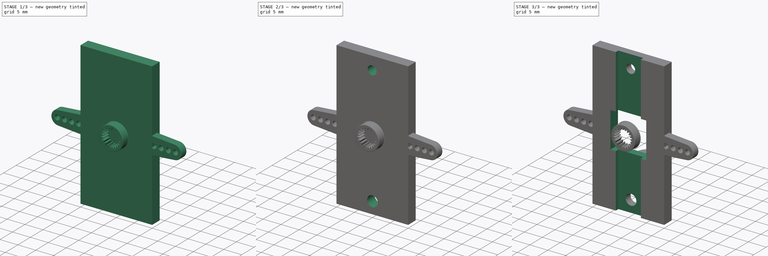
[diagram: build sequence overview — one tinted view per stage of 3, left to right]
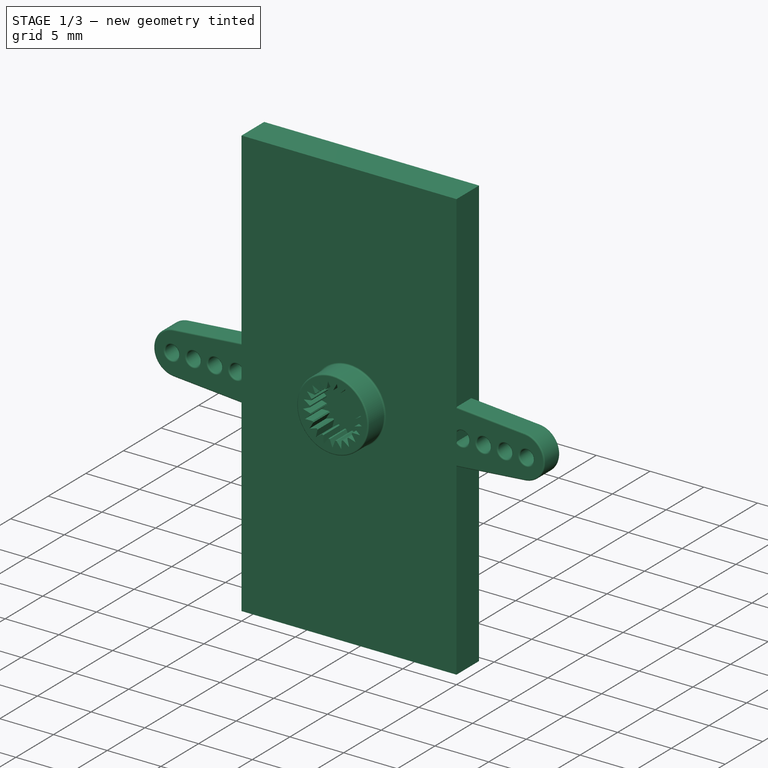
[diagram: stage 1 of 3 — iso view after this stage's code; geometry added in this stage tinted green]
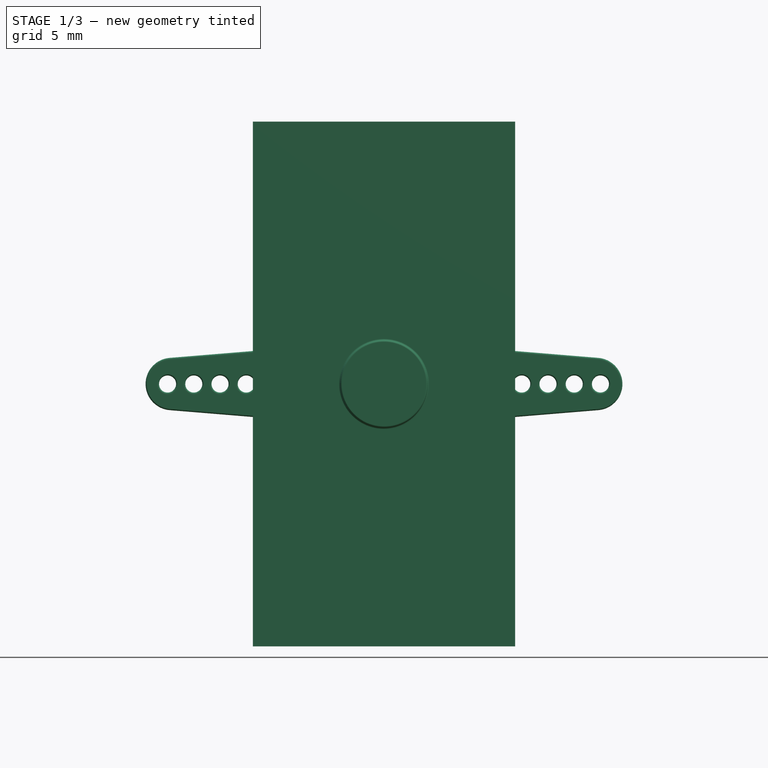
[diagram: stage 1 of 3 — front view after this stage's code; geometry added in this stage tinted green]
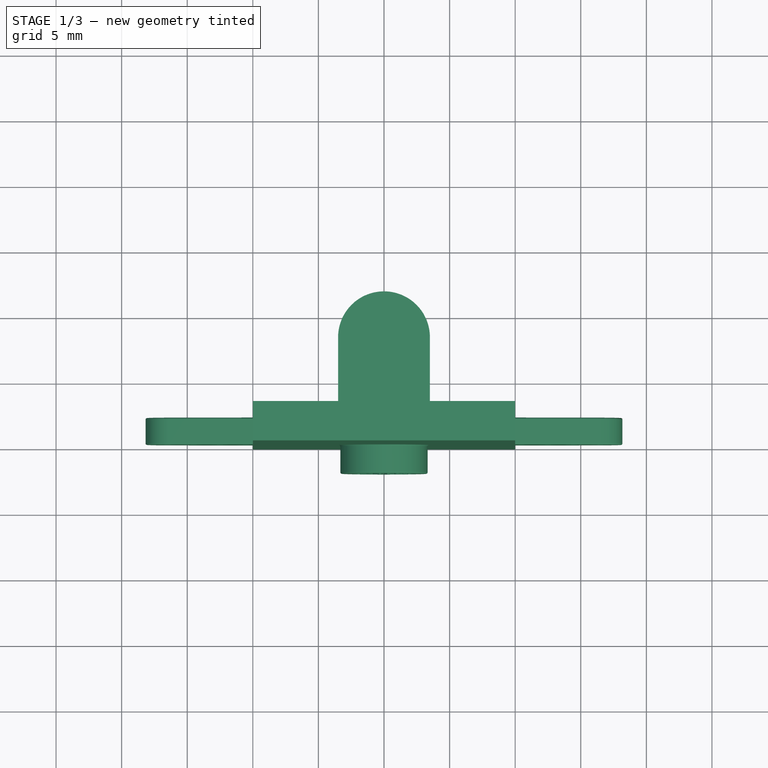
[diagram: stage 1 of 3 — top view after this stage's code; geometry added in this stage tinted green]
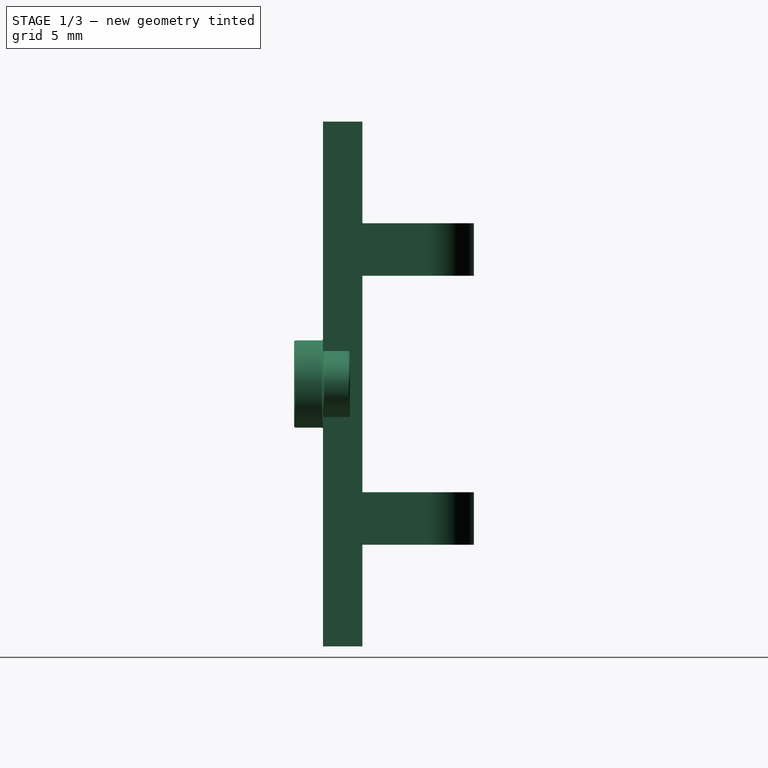
[diagram: stage 1 of 3 — right view after this stage's code; geometry added in this stage tinted green]
FCSTD DOCUMENT  (FreeCAD 1.2R20260429 (Git shallow))
Label: camera mount
License: All rights reserved
LicenseURL: https://en.wikipedia.org/wiki/All_rights_reserved
objects: Sketcher::SketchObject×7, PartDesign::Pocket×6, App::Point×1, Part::Feature×1, PartDesign::SubShapeBinder×1, PartDesign::FeatureBase×1, PartDesign::Pad×1, Part::DatumPlane×1, PartDesign::Body×1
note: 40 computed .brp shape members not serialized (recipe doc carries the construction recipe); baked Part::Feature solids carry a one-line shape summary decoded from their .brp

FEATURE [App::Point] Origin001  label="Origin-Point"
  Role = Origin
FEATURE [Sketcher::SketchObject] Sketch
  ArcFitTolerance = 1e-06
  AttachmentSupport = -> [Origin]
  ExternalTypes = [0]
  FullyConstrained = true
  MakeInternals = false
  MapMode = 2
  sketch-geometry (8):
    g0: LineSegment StartX=-10 StartY=0 StartZ=0 EndX=10 EndY=0 EndZ=0
    g1: LineSegment StartX=10 StartY=0 StartZ=0 EndX=10 EndY=3 EndZ=0
    g2: LineSegment StartX=10 StartY=3 StartZ=0 EndX=3.5 EndY=3 EndZ=0
    g3: LineSegment StartX=-10 StartY=3 StartZ=0 EndX=-10 EndY=0 EndZ=0
    g4: LineSegment StartX=3.5 StartY=3 StartZ=0 EndX=3.5 EndY=8 EndZ=0
    g5: LineSegment StartX=-3.5 StartY=8 StartZ=0 EndX=-3.5 EndY=3 EndZ=0
    g6: LineSegment StartX=-3.5 StartY=3 StartZ=0 EndX=-10 EndY=3 EndZ=0
    g7: ArcOfCircle CenterX=-2e-16 CenterY=7.99998 CenterZ=0 NormalX=0 NormalY=0 NormalZ=1 AngleXU=0 Radius=3.5 StartAngle=6.04025e-06 EndAngle=3.14159
  constraints (23):
    c: Coincident(g0,g1)
    c: Coincident(g1,g2)
    c: Coincident(g6,g3)
    c: Coincident(g3,g0)
    c: Vertical(g1)
    c: Vertical(g3)
    c: PointOnObject(g0,g-1)
    c: DistanceY(g1,g1) = 3
    c: Symmetric(g0,g0,g-2)
    c: DistanceX(g6,g2) = 20
    c: Vertical(g4)
    c: Vertical(g5)
    c: DistanceX(g5,g4) = 7
    c: Symmetric(g5,g4,g-2)
    c: DistanceY(g4,g4) = 5
    c: Horizontal(g2)
    c: Horizontal(g6)
    c: Coincident(g5,g6)
    c: Coincident(g2,g4)
    c: Equal(g5,g4)
    c: Diameter(g7) = 7
    c: Coincident(g7,g5)
    c: Coincident(g7,g4)
FEATURE [Sketcher::SketchObject] Sketch002
  ArcFitTolerance = 1e-06
  ExternalTypes = [0]
  FullyConstrained = true
  MakeInternals = false
  MapMode = 5
  Placement = pos=(0,0,0) rot=(1,0,0;3.14159rad)
  sketch-geometry (1):
    g0: Circle CenterX=0 CenterY=-8 CenterZ=0 NormalX=0 NormalY=0 NormalZ=1 AngleXU=0 Radius=1.5
  constraints (3):
    c: PointOnObject(g0,g-2)
    c: Diameter(g0) = 3
    c: DistanceY(g0,g-1) = 8
FEATURE [Part::Feature] Part__Feature  label="Four directed shoulder"
  Placement = pos=(-0.0982395,-1.3,-0.10173) rot=(0,1,0;4.69494rad)
  shape: bbox 16.55 x 4.55 x 36.67 mm, 232 faces (baked)
FEATURE [PartDesign::SubShapeBinder] Binder
  BindCopyOnChange = 0
  BindMode = 0
  ClaimChildren = false
  Context = -> Body [Binder.]
  Fuse = false
  MakeFace = true
  OffsetFill = false
  OffsetIntersection = false
  OffsetJoinType = 0
  OffsetOpenResult = false
  PartialLoad = false
  Placement = pos=(0.0985409,0,-0.101438) rot=(0,1,0;0.014486rad)
  Refine = true
  Relative = true
  Support = -> [Part__Feature]
  _Version = 2
FEATURE [Sketcher::SketchObject] Sketch005
  ArcFitTolerance = 1e-06
  ExternalGeometry = -> [Binder]
  ExternalTypes = [0,0,0,0,0]
  FullyConstrained = false
  MakeInternals = false
  MapMode = 5
  Placement = pos=(0,0,0) rot=(1,0,0;1.5708rad)
  sketch-geometry (2):
    g0: Circle CenterX=0.0477945 CenterY=-16.7017 CenterZ=0 NormalX=0 NormalY=0 NormalZ=1 AngleXU=0 Radius=1.5
    g1: Circle CenterX=-0.0501183 CenterY=16.2982 CenterZ=0 NormalX=0 NormalY=0 NormalZ=1 AngleXU=0 Radius=1.25
  constraints (3):
    c: Coincident(g0,g-4)
    c: Coincident(g1,g-3)
    c: Diameter(g0) = 3
FEATURE [PartDesign::FeatureBase] BaseFeature
  BaseFeature = -> Part__Feature
  Suppressed = false
FEATURE [PartDesign::Pad] Pad
  BaseFeature = -> BaseFeature
  Direction = (0,0,1)
  Length = 20
  Length2 = 20
  Profile = -> Sketch
  ReferenceAxis = -> Sketch [N_Axis]
  Refine = true
  SideType = 1
  Suppressed = false
  Type = 0
  Type2 = 0
FEATURE [Part::DatumPlane] DatumPlane
  AttachmentOffset = pos=(0,15,11) rot=(0,0,1;0rad)
  AttachmentSupport = -> [Pad]
  MapMode = 5
  Placement = pos=(0,14,15) rot=(0,0.707107,0.707107;3.14159rad)
FEATURE [Sketcher::SketchObject] Sketch001
  ArcFitTolerance = 1e-06
  AttachmentSupport = -> [DatumPlane]
  ExternalGeometry = -> [Pad]
  ExternalTypes = [0,0]
  FullyConstrained = true
  MakeInternals = false
  MapMode = 5
  Placement = pos=(0,14,15) rot=(0,0.707107,0.707107;3.14159rad)
  sketch-geometry (12):
    g0: LineSegment StartX=-3.5 StartY=-6.75 StartZ=0 EndX=-3.5 EndY=-23.25 EndZ=0
    g1: LineSegment StartX=-3.5 StartY=-23.25 StartZ=0 EndX=3.5 EndY=-23.25 EndZ=0
    g2: LineSegment StartX=3.5 StartY=-23.25 StartZ=0 EndX=3.5 EndY=-6.75 EndZ=0
    g3: LineSegment StartX=3.5 StartY=-6.75 StartZ=0 EndX=-3.5 EndY=-6.75 EndZ=0
    g4: LineSegment StartX=-3.5 StartY=-35 StartZ=0 EndX=3.5 EndY=-35 EndZ=0
    g5: LineSegment StartX=3.5 StartY=-35 StartZ=0 EndX=3.5 EndY=-27.25 EndZ=0
    g6: LineSegment StartX=3.5 StartY=-27.25 StartZ=0 EndX=-3.5 EndY=-27.25 EndZ=0
    g7: LineSegment StartX=-3.5 StartY=-27.25 StartZ=0 EndX=-3.5 EndY=-35 EndZ=0
    g8: LineSegment StartX=-3.5 StartY=5 StartZ=0 EndX=-3.5 EndY=-2.75 EndZ=0
    g9: LineSegment StartX=-3.5 StartY=-2.75 StartZ=0 EndX=3.5 EndY=-2.75 EndZ=0
    g10: LineSegment StartX=3.5 StartY=-2.75 StartZ=0 EndX=3.5 EndY=5 EndZ=0
    g11: LineSegment StartX=3.5 StartY=5 StartZ=0 EndX=-3.5 EndY=5 EndZ=0
  constraints (34):
    c: Coincident(g0,g1)
    c: Coincident(g1,g2)
    c: Coincident(g2,g3)
    c: Coincident(g3,g0)
    c: Vertical(g0)
    c: Vertical(g2)
    c: Horizontal(g1)
    c: Horizontal(g3)
    c: PointOnObject(g0,g-4)
    c: PointOnObject(g1,g-3)
    c: DistanceY(g2,g2) = 16.5
    c: DistanceY(g2,g-3) = 11.75
    c: Coincident(g4,g5)
    c: Coincident(g5,g6)
    c: Coincident(g6,g7)
    c: Coincident(g7,g4)
    c: Horizontal(g4)
    c: Horizontal(g6)
    c: Vertical(g5)
    c: Vertical(g7)
    c: Coincident(g4,g-4)
    c: PointOnObject(g5,g-3)
    c: Coincident(g8,g9)
    c: Coincident(g9,g10)
    c: Coincident(g10,g11)
    c: Coincident(g11,g8)
    c: Vertical(g8)
    c: Vertical(g10)
    c: Horizontal(g9)
    c: Horizontal(g11)
    c: Coincident(g8,g-4)
    c: PointOnObject(g9,g-3)
    c: DistanceY(g2,g9) = 4
    c: DistanceY(g5,g1) = 4
FEATURE [PartDesign::Pocket] Pocket
  BaseFeature = -> Pad
  Direction = (0,-1,2e-16)
  Length = 11
  Length2 = 5
  Profile = -> Sketch001
  ReferenceAxis = -> Sketch001 [N_Axis]
  Refine = true
  SideType = 0
  Suppressed = false
  Type = 0
  Type2 = 0
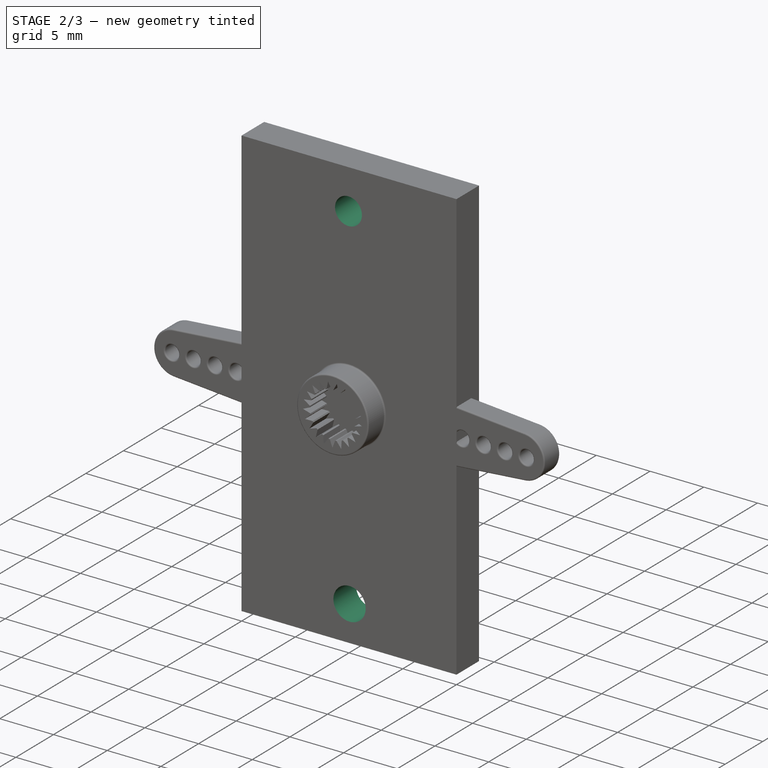
[diagram: stage 2 of 3 — iso view after this stage's code; geometry added in this stage tinted green]
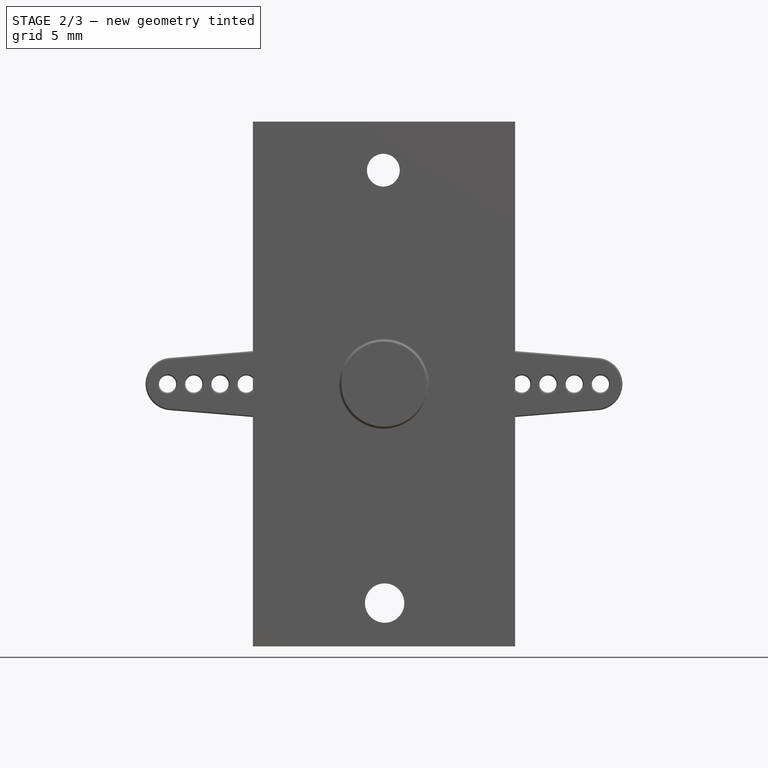
[diagram: stage 2 of 3 — front view after this stage's code; geometry added in this stage tinted green]
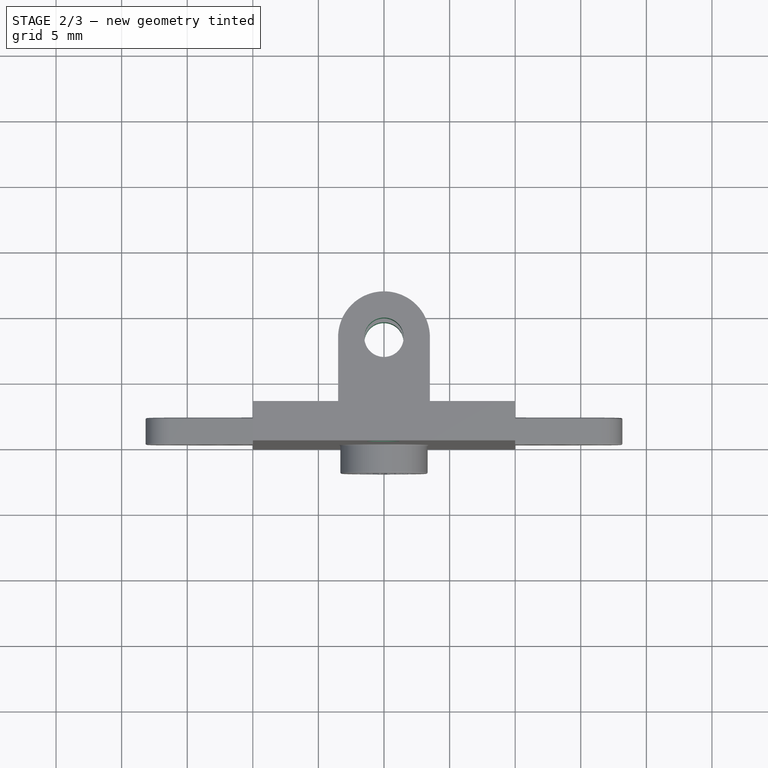
[diagram: stage 2 of 3 — top view after this stage's code; geometry added in this stage tinted green]
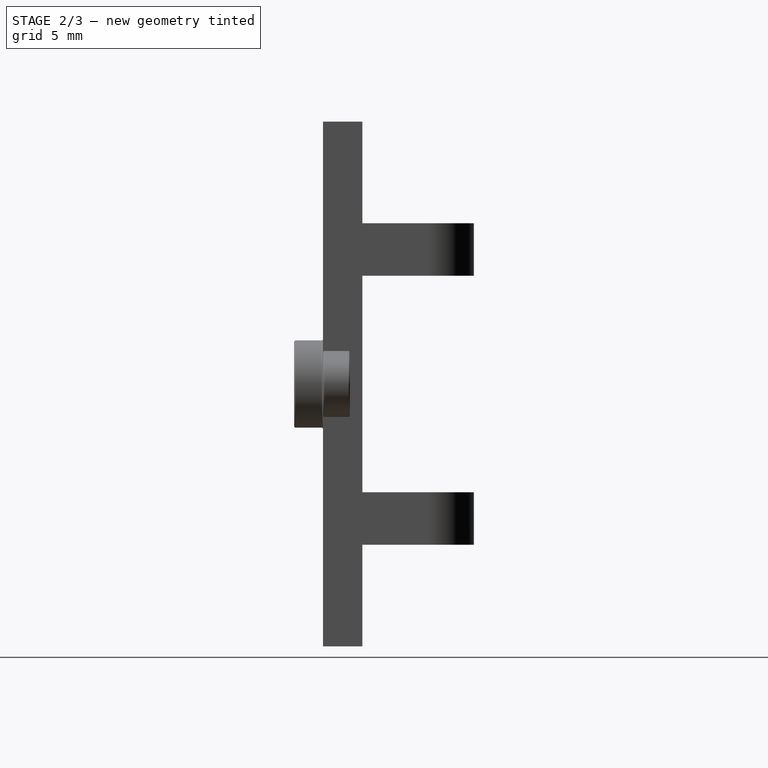
[diagram: stage 2 of 3 — right view after this stage's code; geometry added in this stage tinted green]
FEATURE [PartDesign::Pocket] Pocket001
  BaseFeature = -> Pocket
  Direction = (0,1e-16,1)
  Length = 5
  Length2 = 5
  Profile = -> Sketch002
  ReferenceAxis = -> Sketch002 [N_Axis]
  Refine = true
  SideType = 2
  Suppressed = false
  Type = 1
  Type2 = 0
FEATURE [PartDesign::Pocket] Pocket002
  BaseFeature = -> Pocket001
  Direction = (0,1,-2e-16)
  Length = 5
  Length2 = 5
  Profile = -> Sketch005
  ReferenceAxis = -> Sketch005 [N_Axis]
  Refine = true
  SideType = 0
  Suppressed = false
  Type = 0
  Type2 = 0
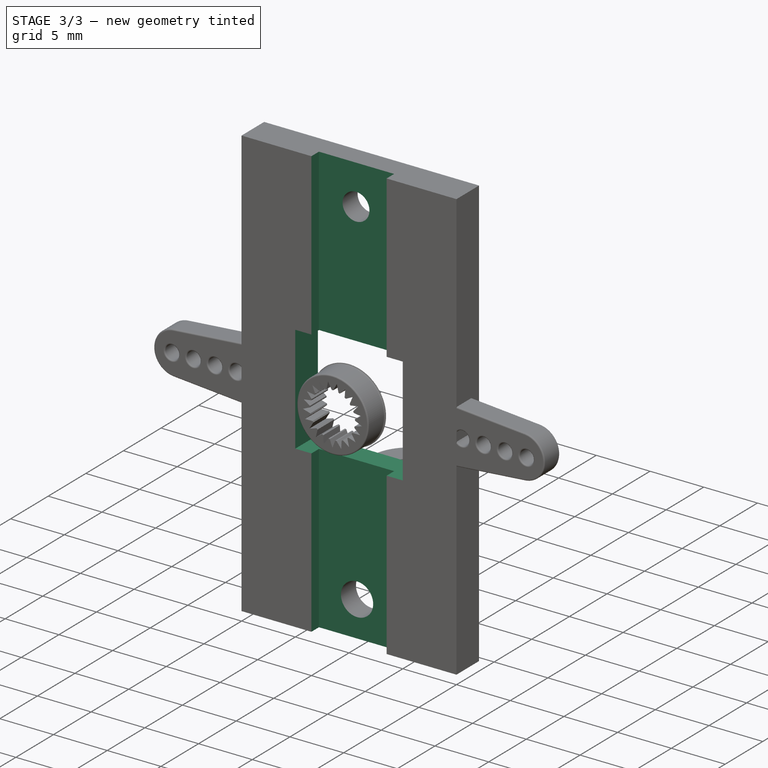
[diagram: stage 3 of 3 — iso view after this stage's code; geometry added in this stage tinted green]
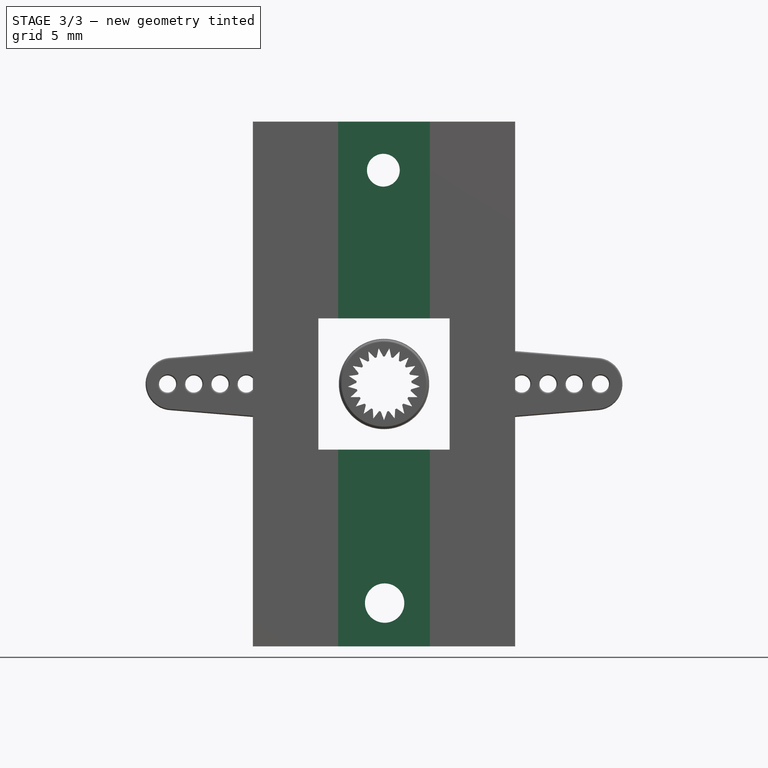
[diagram: stage 3 of 3 — front view after this stage's code; geometry added in this stage tinted green]
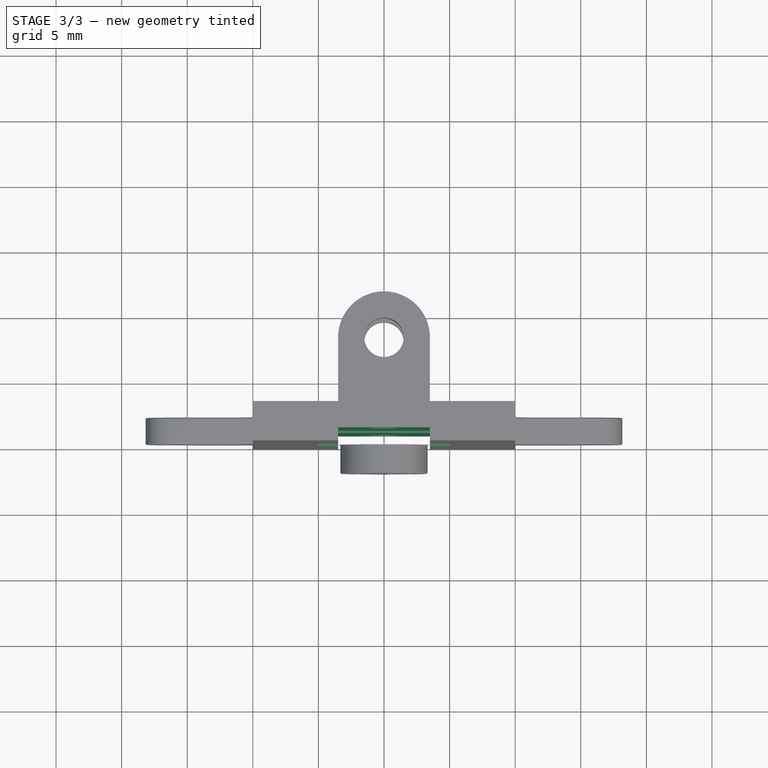
[diagram: stage 3 of 3 — top view after this stage's code; geometry added in this stage tinted green]
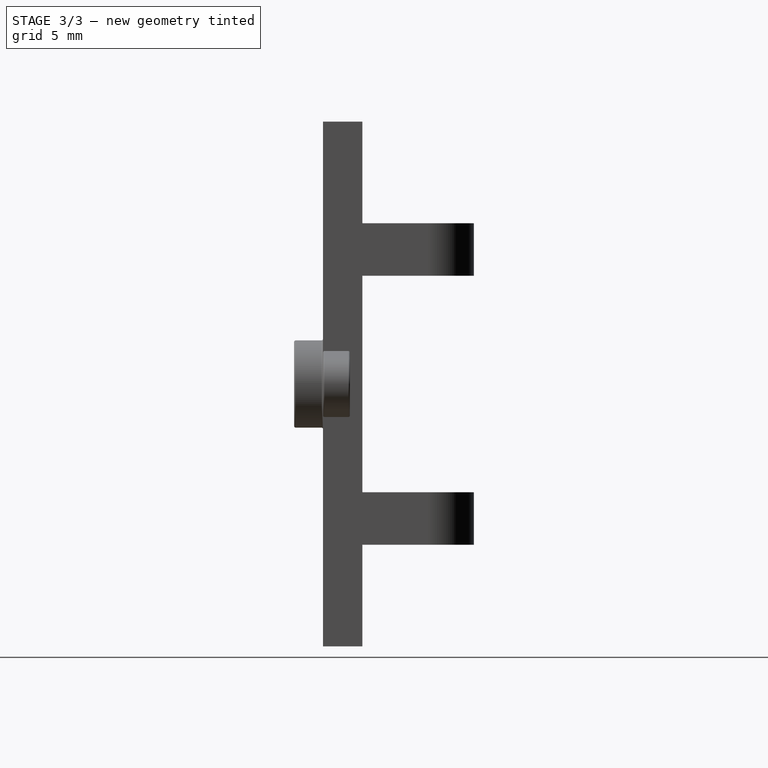
[diagram: stage 3 of 3 — right view after this stage's code; geometry added in this stage tinted green]
FEATURE [Sketcher::SketchObject] Sketch006
  ArcFitTolerance = 1e-06
  AttachmentSupport = -> [Pocket002]
  ExternalGeometry = -> [Pocket002]
  ExternalTypes = [0,0]
  FullyConstrained = false
  MakeInternals = false
  MapMode = 5
  Placement = pos=(0,0,0) rot=(1,0,0;1.5708rad)
  sketch-geometry (12):
    g0: LineSegment StartX=-3.5 StartY=20.5 StartZ=0 EndX=-3.5 EndY=5 EndZ=0
    g1: LineSegment StartX=-3.5 StartY=-20.5 StartZ=0 EndX=3.5 EndY=-20.5 EndZ=0
    g2: LineSegment StartX=3.5 StartY=-20.5 StartZ=0 EndX=3.5 EndY=-5 EndZ=0
    g3: LineSegment StartX=3.5 StartY=20.5 StartZ=0 EndX=-3.5 EndY=20.5 EndZ=0
    g4: LineSegment StartX=3.5 StartY=5 StartZ=0 EndX=3.5 EndY=20.5 EndZ=0
    g5: LineSegment StartX=-3.5 StartY=-5 StartZ=0 EndX=-3.5 EndY=-20.5 EndZ=0
    g6: LineSegment StartX=-5 StartY=5 StartZ=0 EndX=-5 EndY=-5 EndZ=0
    g7: LineSegment StartX=-5 StartY=-5 StartZ=0 EndX=-3.5 EndY=-5 EndZ=0
    g8: LineSegment StartX=5 StartY=-5 StartZ=0 EndX=5 EndY=5 EndZ=0
    g9: LineSegment StartX=5 StartY=5 StartZ=0 EndX=3.5 EndY=5 EndZ=0
    g10: LineSegment StartX=-3.5 StartY=5 StartZ=0 EndX=-5 EndY=5 EndZ=0
    g11: LineSegment StartX=3.5 StartY=-5 StartZ=0 EndX=5 EndY=-5 EndZ=0
  constraints (28):
    c: Coincident(g5,g1)
    c: Coincident(g1,g2)
    c: Coincident(g4,g3)
    c: Coincident(g3,g0)
    c: Horizontal(g1)
    c: DistanceX(g1,g1) = 7
    c: DistanceY(g2,g4) = 41
    c: Symmetric(g4,g1,g-1)
    c: Symmetric(g0,g4,g-2)
    c: Coincident(g6,g7)
    c: Coincident(g11,g8)
    c: Coincident(g8,g9)
    c: Coincident(g10,g6)
    c: Vertical(g6)
    c: Vertical(g8)
    c: DistanceY(g6,g6) = 10
    c: DistanceX(g7,g11) = 10
    c: Symmetric(g6,g11,g-1)
    c: Vertical(g5)
    c: Vertical(g0)
    c: Horizontal(g9)
    c: Horizontal(g10)
    c: Coincident(g4,g9)
    c: Coincident(g0,g10)
    c: Horizontal(g7)
    c: Horizontal(g11)
    c: Coincident(g2,g11)
    c: Coincident(g5,g7)
FEATURE [PartDesign::Pocket] Pocket003
  BaseFeature = -> Pocket002
  Direction = (0,1,-2e-16)
  Length = 1
  Length2 = 5
  Profile = -> Sketch006
  ReferenceAxis = -> Sketch006 [N_Axis]
  Refine = true
  SideType = 0
  Suppressed = false
  Type = 0
  Type2 = 0
FEATURE [Sketcher::SketchObject] Sketch007
  ArcFitTolerance = 1e-06
  AttachmentSupport = -> [Pocket003]
  ExternalGeometry = -> [Pocket003]
  ExternalTypes = [0]
  FullyConstrained = true
  MakeInternals = false
  MapMode = 5
  Placement = pos=(0,-2.7e-15,-12.25) rot=(1,0,0;3.14159rad)
  sketch-geometry (1):
    g0: Circle CenterX=0 CenterY=-8 CenterZ=0 NormalX=0 NormalY=0 NormalZ=1 AngleXU=0 Radius=2.5
  constraints (2):
    c: Coincident(g0,g-3)
    c: Diameter(g0) = 5
FEATURE [PartDesign::Pocket] Pocket004
  BaseFeature = -> Pocket003
  Direction = (0,0,1)
  Length = 2
  Length2 = 5
  Profile = -> Sketch007
  ReferenceAxis = -> Sketch007 [N_Axis]
  Refine = true
  SideType = 0
  Suppressed = false
  Type = 0
  Type2 = 0
FEATURE [Sketcher::SketchObject] Sketch008
  ArcFitTolerance = 1e-06
  AttachmentSupport = -> [Pocket004]
  ExternalGeometry = -> [Pocket004]
  ExternalTypes = [0,0]
  FullyConstrained = true
  MakeInternals = false
  MapMode = 5
  Placement = pos=(0,1,0) rot=(1,0,0;1.5708rad)
  sketch-geometry (4):
    g0: LineSegment StartX=-5 StartY=5 StartZ=0 EndX=-5 EndY=-5 EndZ=0
    g1: LineSegment StartX=-5 StartY=-5 StartZ=0 EndX=5 EndY=-5 EndZ=0
    g2: LineSegment StartX=5 StartY=-5 StartZ=0 EndX=5 EndY=5 EndZ=0
    g3: LineSegment StartX=5 StartY=5 StartZ=0 EndX=-5 EndY=5 EndZ=0
  constraints (9):
    c: Coincident(g0,g1)
    c: Coincident(g1,g2)
    c: Coincident(g2,g3)
    c: Coincident(g3,g0)
    c: Vertical(g0)
    c: Horizontal(g1)
    c: Coincident(g2,g-3)
    c: Coincident(g0,g-4)
    c: Coincident(g1,g-3)
FEATURE [PartDesign::Pocket] Pocket005
  BaseFeature = -> Pocket004
  Direction = (0,1,-2e-16)
  Length = 5
  Length2 = 5
  Profile = -> Sketch008
  ReferenceAxis = -> Sketch008 [N_Axis]
  Refine = true
  SideType = 0
  Suppressed = false
  Type = 0
  Type2 = 0
FEATURE [PartDesign::Body] Body
  AllowCompound = true
  BaseFeature = -> Part__Feature
  Group = -> [BaseFeature,Sketch,Pad,DatumPlane,Sketch001,Sketch002,Pocket,Pocket001,Binder,Sketch005,Pocket002,Sketch006,Pocket003,Sketch007,Pocket004,Sketch008,Pocket005]
  Origin = -> Origin
  Tip = -> Pocket005
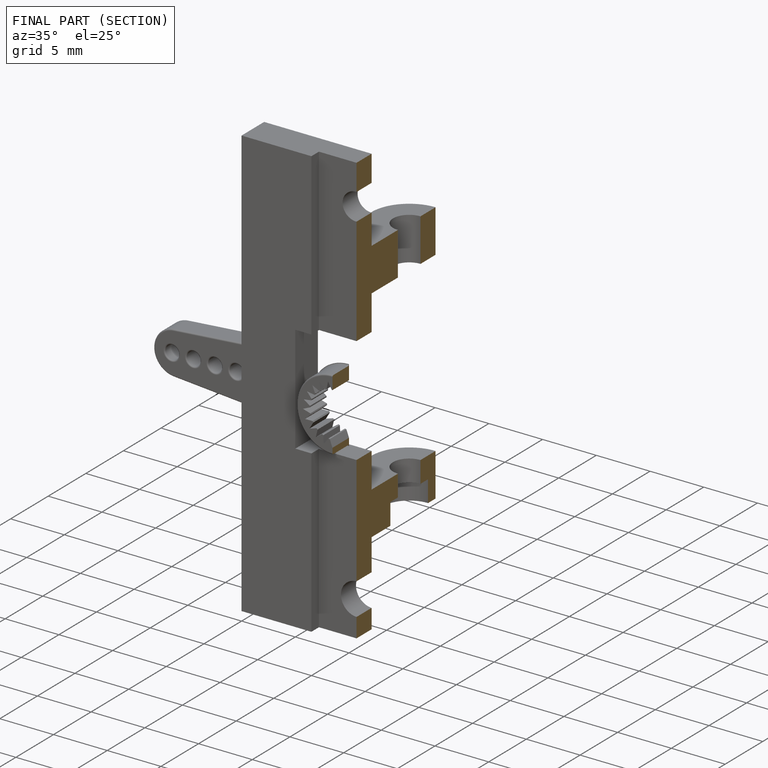
[diagram: finished part — half-section view (interior)]
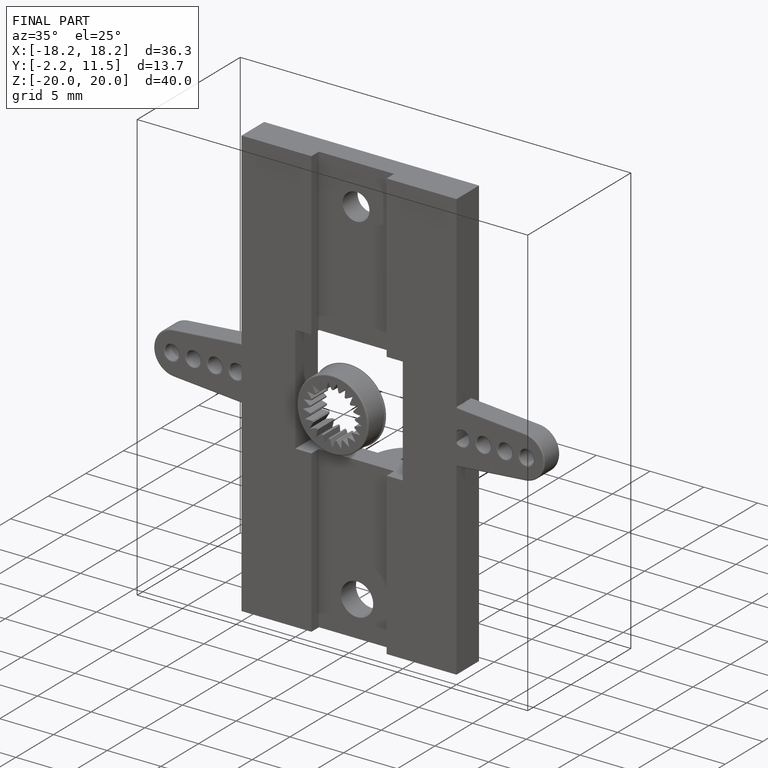
[diagram: finished part — iso view with bounding-box wireframe]
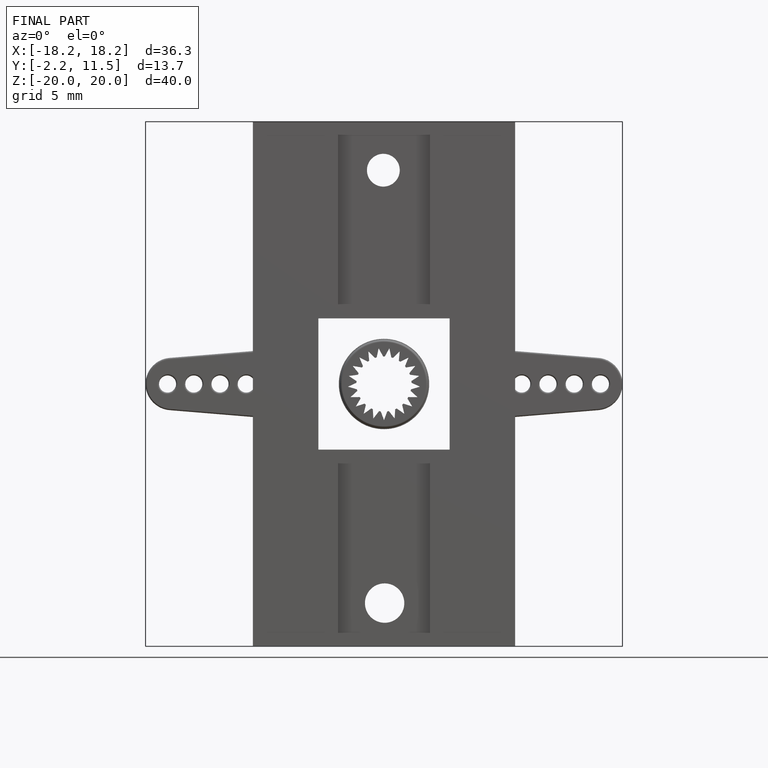
[diagram: finished part — front view with bounding-box wireframe]
